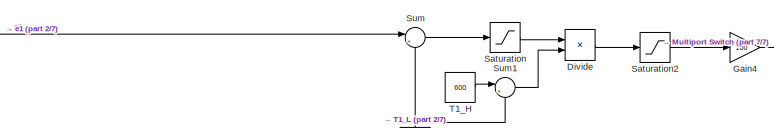
[diagram: root canvas - part 1/7, top center region]
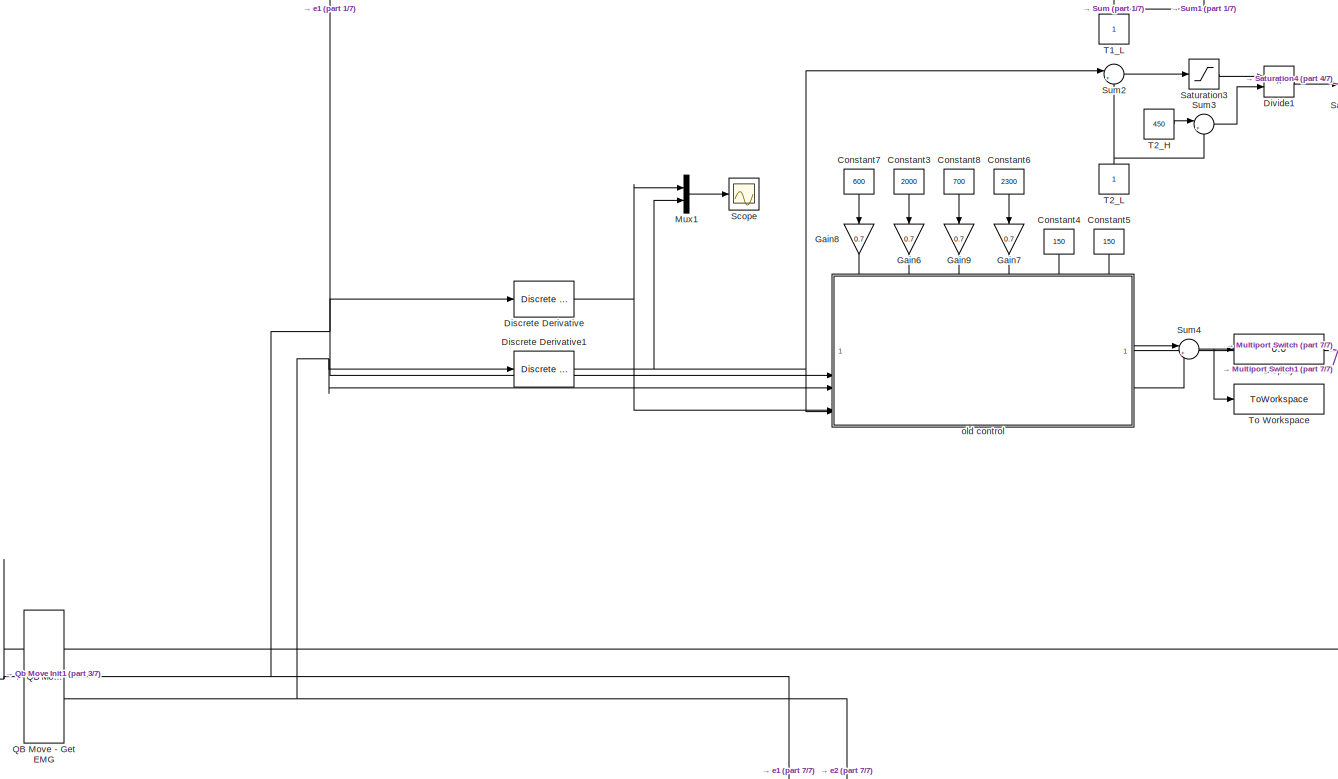
[diagram: root canvas - part 2/7, top center region]
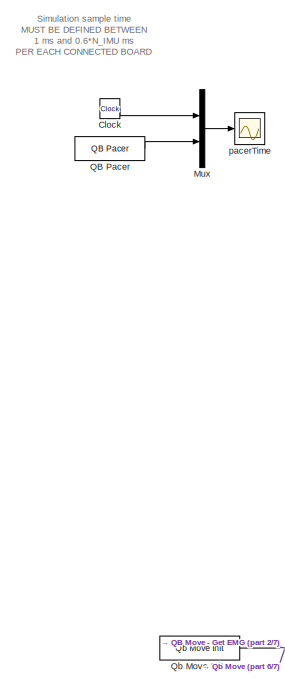
[diagram: root canvas - part 3/7, top left region]
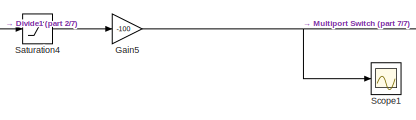
[diagram: root canvas - part 4/7, top center region]
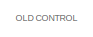
[diagram: root canvas - part 5/7, top left region]
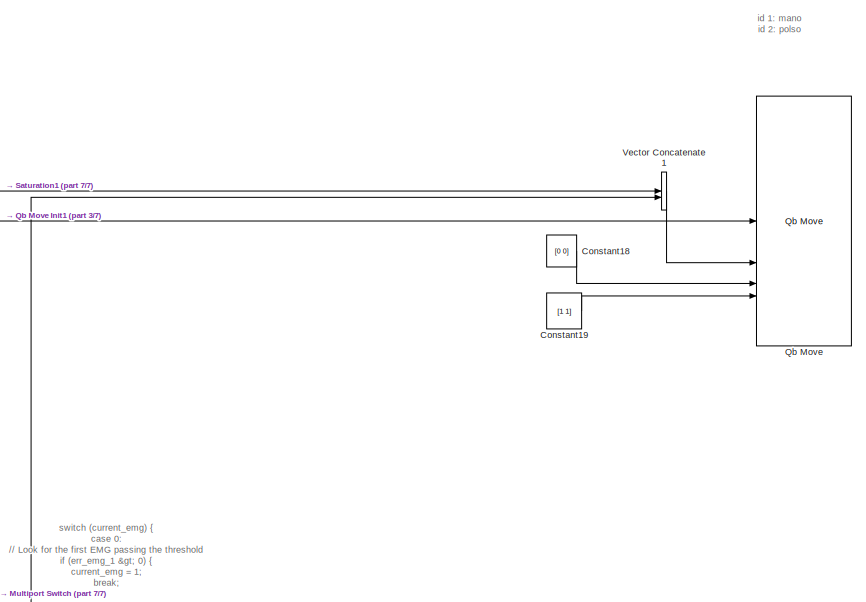
[diagram: root canvas - part 6/7, middle right region]
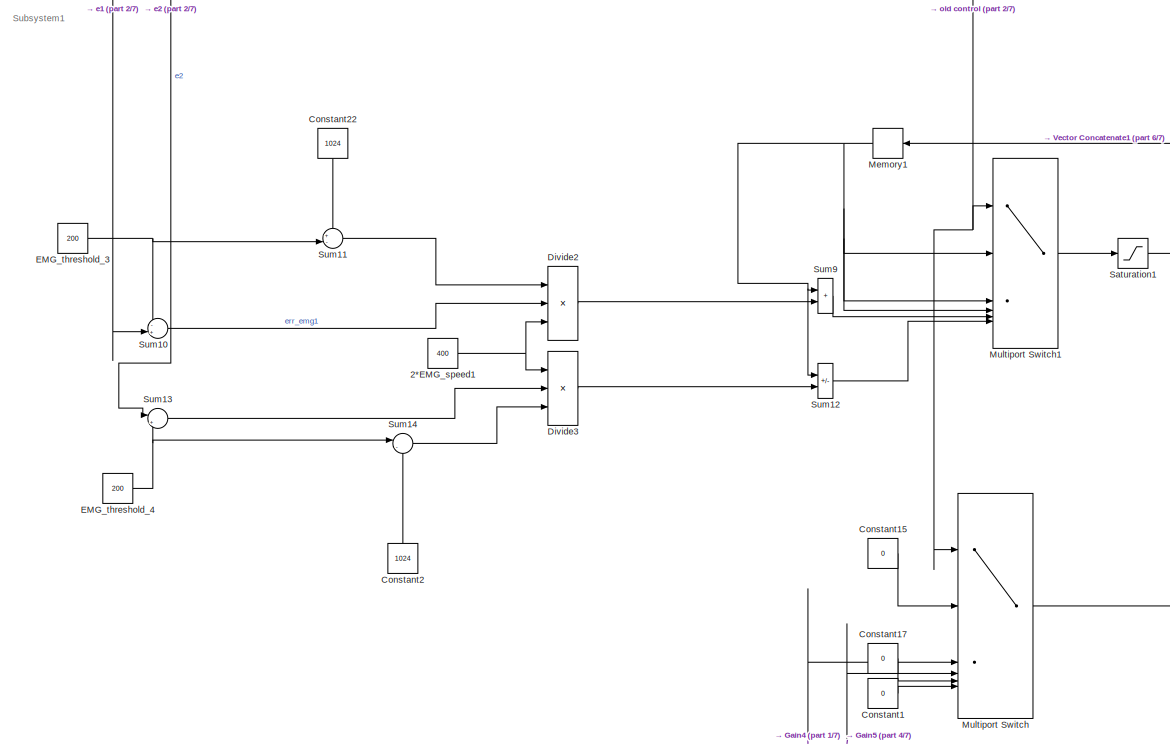
[diagram: root canvas - part 7/7, central region]
MODEL slx_cd78b3c2cbd5
KIND model
CONFIG AbsTol = auto
CONFIG EnableMultiTasking = off
CONFIG FixedStep = 0.01
CONFIG MaxStep = auto
CONFIG MinStep = auto
CONFIG RelTol = 1e-3
CONFIG SampleTimeConstraint = Unconstrained
CONFIG SolverName = ode1
CONFIG StartTime = 0.0
CONFIG StopTime = inf
BLOCK [Constant] 2*EMG_speed1
  Value = 400
BLOCK [Clock] Clock
BLOCK [Constant] Constant1
  Value = 0
BLOCK [Constant] Constant15
  Value = 0
BLOCK [Constant] Constant17
  Value = 0
BLOCK [Constant] Constant18
  Value = [0 0]
BLOCK [Constant] Constant19
  Value = [1 1]
BLOCK [Constant] Constant2
  NameLocation = right
  Value = 1024
BLOCK [Constant] Constant22
  NameLocation = left
  Value = 1024
BLOCK [Constant] Constant3
  NameLocation = right
  Value = 2000
BLOCK [Constant] Constant4
  NameLocation = right
  Value = 150
BLOCK [Constant] Constant5
  NameLocation = right
  Value = 150
BLOCK [Constant] Constant6
  NameLocation = right
  Value = 2300
BLOCK [Constant] Constant7
  NameLocation = right
  Value = 600
BLOCK [Constant] Constant8
  NameLocation = right
  Value = 700
BLOCK [Reference] Discrete Derivative  REF=simulink/Discrete/Discrete Derivative
  SourceBlock = simulink/Discrete/Discrete Derivative
  SourceType = Discrete Derivative
BLOCK [Reference] Discrete Derivative1  REF=simulink/Discrete/Discrete Derivative
  SourceBlock = simulink/Discrete/Discrete Derivative
  SourceType = Discrete Derivative
BLOCK [Display] Display
  Decimation = 1
BLOCK [Product] Divide
  Inputs = */
BLOCK [Product] Divide1
  Inputs = */
BLOCK [Product] Divide2
  Inputs = /**
BLOCK [Product] Divide3
  Inputs = **/
BLOCK [Constant] EMG_threshold_3
  Value = 200
BLOCK [Constant] EMG_threshold_4
  Value = 200
BLOCK [Gain] Gain4
  Gain = 100
BLOCK [Gain] Gain5
  Gain = -100
BLOCK [Gain] Gain6
  Gain = 0.7
  NameLocation = left
BLOCK [Gain] Gain7
  Gain = 0.7
  NameLocation = left
BLOCK [Gain] Gain8
  Gain = 0.7
  NameLocation = left
BLOCK [Gain] Gain9
  Gain = 0.7
  NameLocation = left
BLOCK [Memory] Memory1
BLOCK [MultiPortSwitch] Multiport Switch
  DataPortOrder = Zero-based contiguous
  InputSameDT = off
  Inputs = 5
  SaturateOnIntegerOverflow = off
  zeroidx = on
BLOCK [MultiPortSwitch] Multiport Switch1
  DataPortOrder = Zero-based contiguous
  InputSameDT = off
  Inputs = 5
  SaturateOnIntegerOverflow = off
  zeroidx = on
BLOCK [Mux] Mux
  DisplayOption = bar
  Inputs = 2
BLOCK [Mux] Mux1
  DisplayOption = bar
  Inputs = 2
BLOCK [Reference] QB Move - Get EMG  REF=qbmove_library/QB Move - Get EMG
  SourceBlock = qbmove_library/QB Move - Get EMG
  SourceProductName = Qb Move Library
  SourceType = qb move
BLOCK [Reference] QB Pacer  REF=QB_pacer_lib/QB Pacer
  SourceBlock = QB_pacer_lib/QB Pacer
  SourceProductName = QB Pacer
  SourceType = RealTime_Pacer
BLOCK [Reference] Qb Move  REF=qbmove_library/Qb Move
  LibrarySourceBlock = qbmove_library/qbmove
  SourceBlock = qbmove_library/Qb Move
  SourceProductName = Qb Move Library
  SourceType = qb move
BLOCK [Reference] Qb Move Init1  REF=qbmove_library/Qb Move Init
  NameLocation = top
  SourceBlock = qbmove_library/Qb Move Init
  SourceProductName = Qb Move Library
  SourceType = qb Init - ISS
BLOCK [Saturate] Saturation
  LowerLimit = 0
  UpperLimit = inf
BLOCK [Saturate] Saturation1
  LowerLimit = 0
  UpperLimit = 17500
BLOCK [Saturate] Saturation2
  LowerLimit = 0.3
  UpperLimit = 1
BLOCK [Saturate] Saturation3
  LowerLimit = 0
  UpperLimit = inf
BLOCK [Saturate] Saturation4
  LowerLimit = 0.3
  UpperLimit = 1
BLOCK [Scope] Scope
  Floating = off
  NumInputPorts = 1
  ScopeSpecificationString = Simulink.scopes.TimeScopeBlockCfg('CurrentConfiguration', extmgr.ConfigurationSet(extmgr.Configuration('Core','General UI',true),extmgr.Configuration('Core','Source UI',true),extmgr.Configuration('Sources','WiredSimulink',true,'DataLoggingVariableName','ScopeData1'),extmgr.Configuration('Visuals','Time Domain',true,'SerializedDisplays',{struct('MinYLimReal','-47062.5','MaxYLimReal','27562.5','YLab...<+1484ch>
BLOCK [Scope] Scope1
  Floating = off
  NumInputPorts = 1
  ScopeSpecificationString = Simulink.scopes.TimeScopeBlockCfg('CurrentConfiguration', extmgr.ConfigurationSet(extmgr.Configuration('Core','General UI',true),extmgr.Configuration('Core','Source UI',true),extmgr.Configuration('Sources','WiredSimulink',true,'DataLoggingVariableName','ScopeData1'),extmgr.Configuration('Visuals','Time Domain',true,'SerializedDisplays',{struct('MinYLimReal','-40.00000','MaxYLimReal','-20.00000','Y...<+1401ch>
BLOCK [Sum] Sum
  Inputs = |+-
BLOCK [Sum] Sum1
  Inputs = |+-
BLOCK [Sum] Sum10
  Inputs = -+|
BLOCK [Sum] Sum11
  Inputs = +-|
BLOCK [Sum] Sum12
  IconShape = rectangular
  Inputs = +-
BLOCK [Sum] Sum13
  Inputs = |+-
BLOCK [Sum] Sum14
  Inputs = |-+
BLOCK [Sum] Sum2
  Inputs = |+-
BLOCK [Sum] Sum3
  Inputs = |+-
BLOCK [Sum] Sum4
  Inputs = |++
BLOCK [Sum] Sum9
  IconShape = rectangular
BLOCK [Constant] T1_H
  Value = 600
BLOCK [Constant] T1_L
  NameLocation = right
BLOCK [Constant] T2_H
  Value = 450
BLOCK [Constant] T2_L
  NameLocation = right
BLOCK [ToWorkspace] To Workspace
  FixptAsFi = on
  MaxDataPoints = inf
  SampleTime = -1
  SaveFormat = Timeseries
  VariableName = n_var
BLOCK [Concatenate] Vector Concatenate1
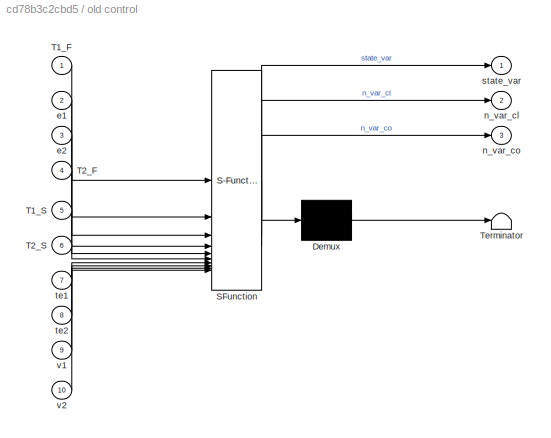
BLOCK [SubSystem] old control
  ErrorFcn = Stateflow.Translate.translate
  PermitHierarchicalResolution = ExplicitOnly
  PortSchema = {"entries":[{"content":{"sides":[{"content":{"connectorIds":["In9","In2","In10","In3"]},"type":"ConnectorPlacement.EquallySpacedRectSide","uuid":"aaa81814-6111-40a9-8a49-70dedea376f8"},{"content":{"connectorIds":["Out1","Out2","Out3"],"side":"RIGHT"},"type":"ConnectorPlacement.EquallySpacedRectSide","uuid":"4f5d7e2f-474c-41be-9ef6-4ca0a99bad8f"},{"content":{"connectorIds":["In5","In1","In6","In4",...<+308ch>
  SFBlockType = Chart
  TreatAsAtomicUnit = on
BLOCK [Demux] old control/ Demux 
  Outputs = 1
BLOCK [S-Function] old control/ SFunction 
  EnableBusSupport = on
  FunctionName = sf_sfun
  Parameters = 0
  PortCounts = [10 4]
  SFcnIsStateOwnerBlock = off
  SFunctionDeploymentMode = off
  Tag = Stateflow S-Function 6
BLOCK [Terminator] old control/ Terminator 
BLOCK [Inport] old control/T1_F
BLOCK [Inport] old control/T1_S
  Port = 5
BLOCK [Inport] old control/T2_F
  Port = 4
BLOCK [Inport] old control/T2_S
  Port = 6
BLOCK [Inport] old control/e1
  Port = 2
BLOCK [Inport] old control/e2
  Port = 3
BLOCK [Outport] old control/n_var_cl
  Port = 2
BLOCK [Outport] old control/n_var_co
  Port = 3
BLOCK [Outport] old control/state_var
BLOCK [Inport] old control/te1
  Port = 7
BLOCK [Inport] old control/te2
  Port = 8
BLOCK [Inport] old control/v1
  Port = 9
BLOCK [Inport] old control/v2
  Port = 10
BLOCK [Scope] pacerTime
  Floating = off
  NumInputPorts = 1
  ScopeSpecificationString = Simulink.scopes.TimeScopeBlockCfg('CurrentConfiguration', extmgr.ConfigurationSet(extmgr.Configuration('Core','General UI',true),extmgr.Configuration('Core','Source UI',true),extmgr.Configuration('Sources','WiredSimulink',true,'DataLoggingSaveFormat','Array','DataLoggingDecimation','1','DataLoggingDecimateData',true),extmgr.Configuration('Visuals','Time Domain',true,'SerializedDisplays',{struct('M...<+1550ch>
ANNOTATION (root): switch (current_emg) { case 0: // Look for the first EMG passing the threshold if (err_emg_1 > 0) { current_emg = 1; break; } if (err_emg_2 > 0) { current_emg = 2; break; } break; case 1: // EMG 1 is first if (err_emg_1 < 0) { current_emg = 0; break; } g_ref.pos[0] += (err_emg_1 * g_mem.emg_speed * 2) / (1024 - c_mem.emg_threshold[0]); break; case 2: // EMG 2 is first if (err_emg_2 < 0) { current_...<+127ch>
ANNOTATION (root): id 1: mano id 2: polso
ANNOTATION (root): OLD CONTROL
ANNOTATION (root): Simulation sample time MUST BE DEFINED BETWEEN 1 ms and 0.6*N_IMU ms PER EACH CONNECTED BOARD
ANNOTATION (root): Subsystem1
NET 2*EMG_speed1:1 -> Divide2:3, Divide3:1
LINE Clock:1 -> Mux:1
LINE Constant15:1 -> Multiport Switch:2
LINE Constant17:1 -> Multiport Switch:5
LINE Constant18:1 -> Qb Move:3
LINE Constant19:1 -> Qb Move:4
LINE Constant1:1 -> Multiport Switch:6
LINE Constant22:1 -> Sum11:1
LINE Constant2:1 -> Sum14:2
LINE Constant3:1 -> Gain6:1
LINE Constant4:1 -> old control:7
LINE Constant5:1 -> old control:8
LINE Constant6:1 -> Gain7:1
LINE Constant7:1 -> Gain8:1
LINE Constant8:1 -> Gain9:1
NET Discrete Derivative1:1 -> Mux1:2, Sum2:1, old control:10
NET Discrete Derivative:1 -> Mux1:1, old control:9
LINE Divide1:1 -> Saturation4:1
LINE Divide2:1 -> Sum9:2
LINE Divide3:1 -> Sum12:2
LINE Divide:1 -> Saturation2:1
NET EMG_threshold_3:1 -> Sum10:1, Sum11:2
NET EMG_threshold_4:1 -> Sum13:2, Sum14:1
LINE Gain4:1 -> Multiport Switch:3
NET Gain5:1 -> Multiport Switch:4, Scope1:1
LINE Gain6:1 -> old control:1
LINE Gain7:1 -> old control:4
LINE Gain8:1 -> old control:5
LINE Gain9:1 -> old control:6
NET Memory1:1 -> Multiport Switch1:2, Multiport Switch1:3, Multiport Switch1:4, Sum12:1, Sum9:1
LINE Multiport Switch1:1 -> Saturation1:1
LINE Multiport Switch:1 -> Vector Concatenate1:2
LINE Mux1:1 -> Scope:1
LINE Mux:1 -> pacerTime:1
NET QB Move - Get EMG:1 -> Discrete Derivative:1, Sum10:2, Sum:1, old control:2
NET QB Move - Get EMG:2 -> Discrete Derivative1:1, Sum13:1, old control:3
LINE QB Pacer:1 -> Mux:2
NET Qb Move Init1:1 -> QB Move - Get EMG:1, Qb Move:1
NET Saturation1:1 -> Memory1:1, Vector Concatenate1:1
LINE Saturation2:1 -> Gain4:1
LINE Saturation3:1 -> Divide1:1
LINE Saturation4:1 -> Gain5:1
LINE Saturation:1 -> Divide:1
LINE Sum10:1 -> Divide2:2
LINE Sum11:1 -> Divide2:1
LINE Sum12:1 -> Multiport Switch1:6
LINE Sum13:1 -> Divide3:2
LINE Sum14:1 -> Divide3:3
LINE Sum1:1 -> Divide:2
LINE Sum2:1 -> Saturation3:1
LINE Sum3:1 -> Divide1:2
NET Sum4:1 -> Display:1, To Workspace:1
LINE Sum9:1 -> Multiport Switch1:5
LINE Sum:1 -> Saturation:1
LINE T1_H:1 -> Sum1:1
NET T1_L:1 -> Sum1:2, Sum:2
LINE T2_H:1 -> Sum3:1
NET T2_L:1 -> Sum2:2, Sum3:2
LINE Vector Concatenate1:1 -> Qb Move:2
NET old control:1 -> Multiport Switch1:1, Multiport Switch:1
LINE old control:2 -> Sum4:1
LINE old control:3 -> Sum4:2
note: NET lines group one-source signal fan-out (src -> all destinations, sorted); 1:1 wires keep LINE
CHART old control states=11 transitions=9
  STATE_LABEL 'State1\nentry : state_var =1;\n entry: n_var_cl = n_var_cl +1;\n'
  STATE_LABEL '<!DOCTYPE HTML PUBLIC "-//W3C//DTD HTML 4.0//EN" "http://www.w3.org/TR/REC-html40/strict.dtd">\n<html><head><meta name="qrichtext" content="1" /><style type="text/css">\np, li { white-space: pre-wrap; }\n</style></head><body align="left" style=" font-family:\'Helvetica\'; font-size:12px; font-weight:400; font-style:normal;">\n<p align="left" style=" margin-top:0px; margin-bottom:0px; margin-left:0px; ma...<+177ch>'
  STATE_LABEL '<!DOCTYPE HTML PUBLIC "-//W3C//DTD HTML 4.0//EN" "http://www.w3.org/TR/REC-html40/strict.dtd">\n<html><head><meta name="qrichtext" content="1" /><style type="text/css">\np, li { white-space: pre-wrap; }\n</style></head><body align="left" style=" font-family:\'Helvetica\'; font-size:12px; font-weight:400; font-style:normal;">\n<p align="left" style=" margin-top:0px; margin-bottom:0px; margin-left:0px; ma...<+141ch>'
  STATE_LABEL '<!DOCTYPE HTML PUBLIC "-//W3C//DTD HTML 4.0//EN" "http://www.w3.org/TR/REC-html40/strict.dtd">\n<html><head><meta name="qrichtext" content="1" /><style type="text/css">\np, li { white-space: pre-wrap; }\n</style></head><body align="left" style=" font-family:\'Helvetica\'; font-size:12px; font-weight:400; font-style:normal;">\n<p align="left" style=" margin-top:0px; margin-bottom:0px; margin-left:0px; ma...<+851ch>'
  STATE_LABEL 'State3\nentry : state_var =3;'
  STATE_LABEL 'State0\nentry : state_var =0;'
  STATE_LABEL '<!DOCTYPE HTML PUBLIC "-//W3C//DTD HTML 4.0//EN" "http://www.w3.org/TR/REC-html40/strict.dtd">\n<html><head><meta name="qrichtext" content="1" /><style type="text/css">\np, li { white-space: pre-wrap; }\n</style></head><body align="left" style=" font-family:\'Helvetica\'; font-size:12px; font-weight:400; font-style:normal;">\n<p align="left" style=" margin-top:0px; margin-bottom:0px; margin-left:0px; ma...<+163ch>'
  STATE_LABEL 'State2\nentry : state_var =2;\n entry: n_var_co = n_var_co +1;\n'
  STATE_LABEL '<!DOCTYPE HTML PUBLIC "-//W3C//DTD HTML 4.0//EN" "http://www.w3.org/TR/REC-html40/strict.dtd">\n<html><head><meta name="qrichtext" content="1" /><style type="text/css">\np, li { white-space: pre-wrap; }\n</style></head><body align="left" style=" font-family:\'Helvetica\'; font-size:12px; font-weight:400; font-style:normal;">\n<p align="left" style=" margin-top:0px; margin-bottom:0px; margin-left:0px; ma...<+184ch>'
  STATE_LABEL '<!DOCTYPE HTML PUBLIC "-//W3C//DTD HTML 4.0//EN" "http://www.w3.org/TR/REC-html40/strict.dtd">\n<html><head><meta name="qrichtext" content="1" /><style type="text/css">\np, li { white-space: pre-wrap; }\n</style></head><body align="left" style=" font-family:\'Helvetica\'; font-size:12px; font-weight:400; font-style:normal;">\n<p align="left" style=" margin-top:0px; margin-bottom:0px; margin-left:0px; ma...<+162ch>'
  STATE_LABEL 'State4\nentry : state_var =4;'
CHART  states=0 transitions=0
